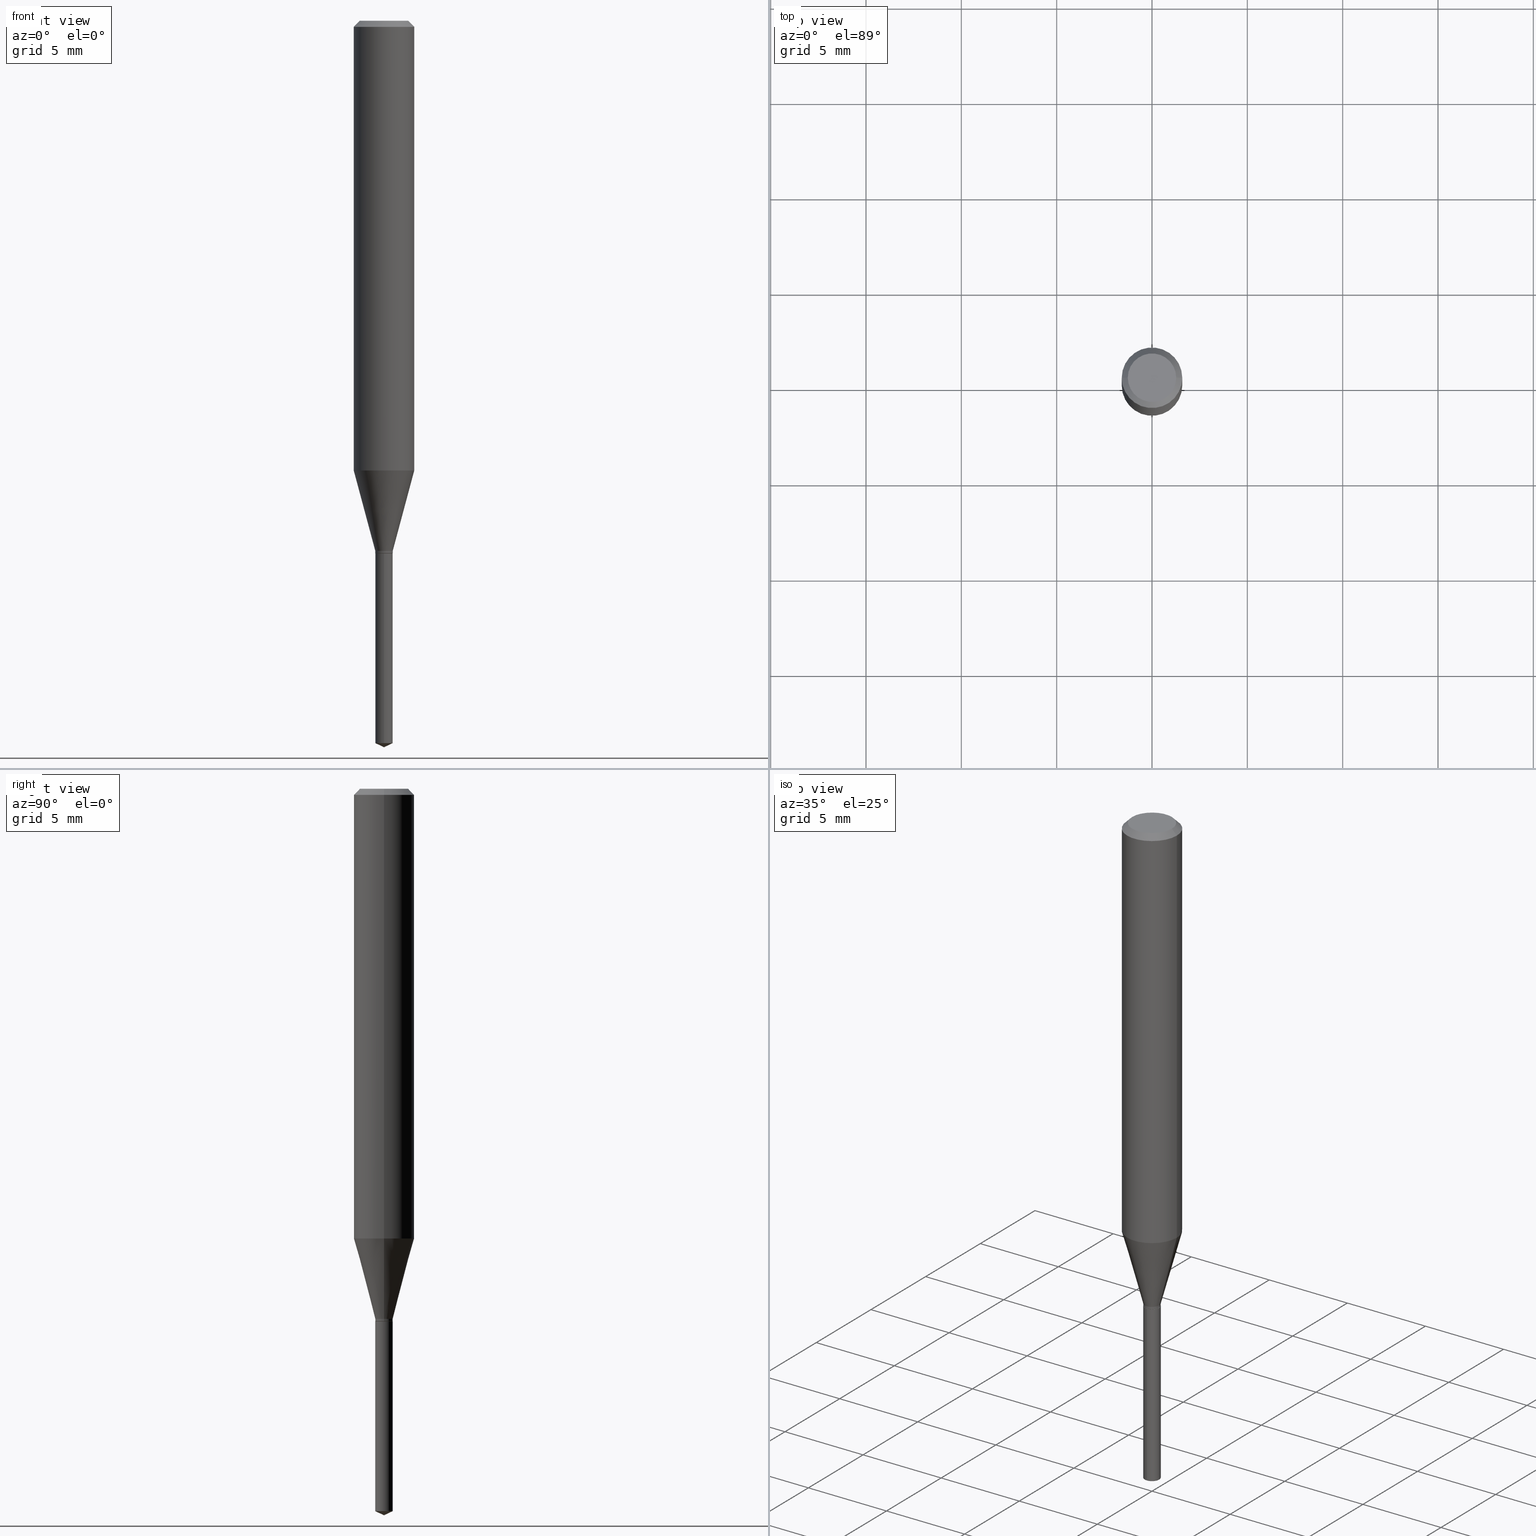
[diagram: canonical four-view strip — front | top / right | iso, engineering-drawing reading convention]
A machine part, canonical four-view strip (front | top / right | iso — engineering-drawing reading convention). The complete STEP part file that produces these views, byte-faithful:
ISO-10303-21;
HEADER;
FILE_DESCRIPTION (( 'STEP AP203' ),
    '1' );
FILE_NAME ('07314.STEP',
    '2024-04-23T20:23:32',
    ( '' ),
    ( '' ),
    'SwSTEP 2.0',
    'SolidWorks 2023',
    '' );
FILE_SCHEMA (( 'CONFIG_CONTROL_DESIGN' ));
ENDSEC;

DATA;
#1 = DATE_AND_TIME ( #227, #62 ) ;
#2 = DIRECTION ( 'NONE',  ( 1.000000000000000000, -6.982962677686278543E-15, 0.000000000000000000 ) ) ;
#3 = VERTEX_POINT ( 'NONE', #455 ) ;
#4 = PERSON_AND_ORGANIZATION ( #157, #124 ) ;
#5 = ADVANCED_FACE ( 'NONE', ( #482 ), #381, .T. ) ;
#6 = DIRECTION ( 'NONE',  ( 2.445468806185136597E-29, -3.491481338843145583E-15, -1.000000000000000000 ) ) ;
#7 = ORIENTED_EDGE ( 'NONE', *, *, #12, .T. ) ;
#8 = VECTOR ( 'NONE', #306, 39.37007874015748143 ) ;
#9 = CIRCLE ( 'NONE', #345, 0.01799999999999999864 ) ;
#10 = ORIENTED_EDGE ( 'NONE', *, *, #257, .T. ) ;
#11 = ORIENTED_EDGE ( 'NONE', *, *, #173, .T. ) ;
#12 = EDGE_CURVE ( 'NONE', #447, #254, #177, .T. ) ;
#13 = CARTESIAN_POINT ( 'NONE',  ( 3.647650008117672005E-29, -5.207954887819162925E-15, -1.491606462153210355 ) ) ;
#14 = CARTESIAN_POINT ( 'NONE',  ( -0.01749999999999999820, -3.716284493969442853E-15, -1.100000000000000089 ) ) ;
#15 = EDGE_CURVE ( 'NONE', #186, #222, #147, .T. ) ;
#16 = APPLICATION_PROTOCOL_DEFINITION ( 'international standard', 'config_control_design', 1994, #206 ) ;
#17 = PERSON_AND_ORGANIZATION_ROLE ( 'design_owner' ) ;
#18 = AXIS2_PLACEMENT_3D ( 'NONE', #317, #365, #122 ) ;
#19 = CARTESIAN_POINT ( 'NONE',  ( 0.01799999999999999864, -3.964577060256391588E-15, -1.099499999999999922 ) ) ;
#20 = CARTESIAN_POINT ( 'NONE',  ( 2.690015686803650369E-29, -3.840629472727460101E-15, -1.100000000000000089 ) ) ;
#21 = FACE_OUTER_BOUND ( 'NONE', #484, .T. ) ;
#22 = PRODUCT_RELATED_PRODUCT_CATEGORY ( 'detail', '', ( #54 ) ) ;
#23 = CARTESIAN_POINT ( 'NONE',  ( 3.893286209682126177E-47, -5.558580879666067980E-33, -1.592040838891559689E-18 ) ) ;
#24 = DIRECTION ( 'NONE',  ( -2.438088387897960049E-29, 3.491481338843145188E-15, 1.000000000000000000 ) ) ;
#25 = AXIS2_PLACEMENT_3D ( 'NONE', #282, #92, #409 ) ;
#26 = CIRCLE ( 'NONE', #142, 0.06250000000000000000 ) ;
#27 = ORIENTED_EDGE ( 'NONE', *, *, #70, .T. ) ;
#28 = ORIENTED_EDGE ( 'NONE', *, *, #353, .F. ) ;
#29 = COORDINATED_UNIVERSAL_TIME_OFFSET ( 5, 0, .BEHIND. ) ;
#30 = CARTESIAN_POINT ( 'NONE',  ( 1.278976924368545333E-16, 0.01799999999999615796, -1.100000000000000089 ) ) ;
#31 = EDGE_LOOP ( 'NONE', ( #377, #431, #10, #28 ) ) ;
#32 = VECTOR ( 'NONE', #211, 39.37007874015748143 ) ;
#33 = ORIENTED_EDGE ( 'NONE', *, *, #483, .T. ) ;
#34 = ORIENTED_EDGE ( 'NONE', *, *, #391, .F. ) ;
#35 = CALENDAR_DATE ( 2024, 23, 4 ) ;
#36 = FACE_OUTER_BOUND ( 'NONE', #268, .T. ) ;
#37 = VERTEX_POINT ( 'NONE', #30 ) ;
#38 = ORIENTED_EDGE ( 'NONE', *, *, #452, .T. ) ;
#39 = AXIS2_PLACEMENT_3D ( 'NONE', #262, #264, #2 ) ;
#40 = AXIS2_PLACEMENT_3D ( 'NONE', #435, #86, #441 ) ;
#41 = DIRECTION ( 'NONE',  ( -2.445468806185136597E-29, 3.491481338843145583E-15, 1.000000000000000000 ) ) ;
#42 = ORIENTED_EDGE ( 'NONE', *, *, #79, .F. ) ;
#43 = CARTESIAN_POINT ( 'NONE',  ( 2.676810155250250579E-29, -3.821775473497707863E-15, -1.094600000000000017 ) ) ;
#44 = CC_DESIGN_DATE_AND_TIME_ASSIGNMENT ( #1, #461, ( #84 ) ) ;
#45 = DIRECTION ( 'NONE',  ( -6.328713451373388311E-15, -0.9063077870366513800, 0.4226182617406960551 ) ) ;
#46 = DATE_AND_TIME ( #331, #259 ) ;
#47 = CC_DESIGN_APPROVAL ( #404, ( #267 ) ) ;
#48 = CARTESIAN_POINT ( 'NONE',  ( 0.01749999999999999820, -3.962831319586970084E-15, -1.100000000000000089 ) ) ;
#49 = EDGE_CURVE ( 'NONE', #447, #308, #193, .T. ) ;
#50 = CARTESIAN_POINT ( 'NONE',  ( 2.690015686803650369E-29, -3.840629472727460101E-15, -1.100000000000000089 ) ) ;
#51 = DIRECTION ( 'NONE',  ( 1.000000000000000000, -6.982962677686278543E-15, 0.000000000000000000 ) ) ;
#52 = CIRCLE ( 'NONE', #312, 0.01799999999999999864 ) ;
#53 = CONICAL_SURFACE ( 'NONE', #74, 84.42940631927551465, 1.134464013796321336 ) ;
#54 = PRODUCT ( '07314', '07314', '', ( #176 ) ) ;
#55 = EDGE_CURVE ( 'NONE', #222, #37, #419, .T. ) ;
#56 =( NAMED_UNIT ( * ) SI_UNIT ( $, .STERADIAN. ) SOLID_ANGLE_UNIT ( ) );
#57 = ORIENTED_EDGE ( 'NONE', *, *, #55, .T. ) ;
#58 = CARTESIAN_POINT ( 'NONE',  ( 3.056836007731440539E-31, -4.364351673553960451E-17, -0.01250000000000008049 ) ) ;
#59 = DIRECTION ( 'NONE',  ( 1.000000000000000000, -6.982962677686266711E-15, 4.876176775795935232E-29 ) ) ;
#60 = ORIENTED_EDGE ( 'NONE', *, *, #15, .T. ) ;
#61 = VECTOR ( 'NONE', #326, 39.37007874015748143 ) ;
#62 = LOCAL_TIME ( 16, 23, 32.00000000000000000, #347 ) ;
#63 = DIRECTION ( 'NONE',  ( -2.445468806185136597E-29, 3.491481338843145583E-15, 1.000000000000000000 ) ) ;
#64 = ORIENTED_EDGE ( 'NONE', *, *, #49, .T. ) ;
#65 = ORIENTED_EDGE ( 'NONE', *, *, #180, .F. ) ;
#66 = DIRECTION ( 'NONE',  ( 1.000000000000000000, -6.982962677686267499E-15, 0.000000000000000000 ) ) ;
#67 = VERTEX_POINT ( 'NONE', #453 ) ;
#68 = PERSON_AND_ORGANIZATION_ROLE ( 'creator' ) ;
#69 = ORIENTED_EDGE ( 'NONE', *, *, #376, .F. ) ;
#70 = EDGE_CURVE ( 'NONE', #411, #383, #140, .T. ) ;
#71 = ORIENTED_EDGE ( 'NONE', *, *, #483, .F. ) ;
#72 = CIRCLE ( 'NONE', #18, 0.01799999999999999864 ) ;
#73 = APPROVAL_STATUS ( 'not_yet_approved' ) ;
#74 = AXIS2_PLACEMENT_3D ( 'NONE', #281, #241, #399 ) ;
#75 = PLANE ( 'NONE',  #266 ) ;
#76 = ORIENTED_EDGE ( 'NONE', *, *, #153, .T. ) ;
#77 = ADVANCED_FACE ( 'NONE', ( #141 ), #108, .F. ) ;
#78 = EDGE_LOOP ( 'NONE', ( #229, #350, #236, #429 ) ) ;
#79 = EDGE_CURVE ( 'NONE', #254, #388, #433, .T. ) ;
#80 = ORIENTED_EDGE ( 'NONE', *, *, #367, .T. ) ;
#81 = DIRECTION ( 'NONE',  ( -2.445468806185136597E-29, 3.491481338843145583E-15, 1.000000000000000000 ) ) ;
#82 = VECTOR ( 'NONE', #378, 39.37007874015748854 ) ;
#83 = LOCAL_TIME ( 16, 23, 32.00000000000000000, #454 ) ;
#84 = PRODUCT_DEFINITION ( 'UNKNOWN', '', #97, #427 ) ;
#85 = CARTESIAN_POINT ( 'NONE',  ( -0.06250000000000005551, 4.440892098500630106E-16, -3.074334431409318916E-30 ) ) ;
#86 = DIRECTION ( 'NONE',  ( -2.445468806185136597E-29, 3.491481338843145583E-15, 1.000000000000000000 ) ) ;
#87 = CYLINDRICAL_SURFACE ( 'NONE', #249, 0.06250000000000005551 ) ;
#88 = LINE ( 'NONE', #240, #61 ) ;
#89 = DIRECTION ( 'NONE',  ( 1.000000000000000000, -6.982962677686265922E-15, 4.875957971899673662E-29 ) ) ;
#90 = DIRECTION ( 'NONE',  ( -2.445468806185136597E-29, 3.491481338843145583E-15, 1.000000000000000000 ) ) ;
#91 = CARTESIAN_POINT ( 'NONE',  ( 0.01799999999999999864, -3.947468801696060853E-15, -1.094600000000000017 ) ) ;
#92 = DIRECTION ( 'NONE',  ( -2.445468806185136597E-29, 3.491481338843145583E-15, 1.000000000000000000 ) ) ;
#93 = APPLICATION_PROTOCOL_DEFINITION ( 'international standard', 'config_control_design', 1994, #181 ) ;
#94 = MANIFOLD_SOLID_BREP ( 'Body-Move/Copy2[1]', #333 ) ;
#95 = EDGE_CURVE ( 'NONE', #150, #67, #179, .T. ) ;
#96 = CIRCLE ( 'NONE', #444, 0.01800000000000000211 ) ;
#97 = PRODUCT_DEFINITION_FORMATION_WITH_SPECIFIED_SOURCE ( 'ANY', '', #54, .NOT_KNOWN. ) ;
#98 = DIRECTION ( 'NONE',  ( 6.982962677686265922E-15, 1.000000000000000000, -3.491580316559632610E-15 ) ) ;
#99 = ORIENTED_EDGE ( 'NONE', *, *, #376, .T. ) ;
#100 = EDGE_LOOP ( 'NONE', ( #303, #395 ) ) ;
#101 = DIRECTION ( 'NONE',  ( 1.000000000000000000, -6.982962677686266711E-15, 0.000000000000000000 ) ) ;
#102 = CARTESIAN_POINT ( 'NONE',  ( 2.270675839681406298E-29, -3.241923307611973113E-15, -0.9285237390631850829 ) ) ;
#103 = AXIS2_PLACEMENT_3D ( 'NONE', #119, #41, #275 ) ;
#104 = AXIS2_PLACEMENT_3D ( 'NONE', #342, #110, #144 ) ;
#105 = AXIS2_PLACEMENT_3D ( 'NONE', #446, #256, #59 ) ;
#106 = PERSON_AND_ORGANIZATION ( #157, #124 ) ;
#107 = ORIENTED_EDGE ( 'NONE', *, *, #406, .T. ) ;
#108 = PLANE ( 'NONE',  #393 ) ;
#109 = SHAPE_DEFINITION_REPRESENTATION ( #474, #372 ) ;
#110 = DIRECTION ( 'NONE',  ( -2.445468806185136597E-29, 3.491481338843145583E-15, 1.000000000000000000 ) ) ;
#111 = ADVANCED_FACE ( 'NONE', ( #112 ), #158, .T. ) ;
#112 = FACE_OUTER_BOUND ( 'NONE', #434, .T. ) ;
#113 = ORIENTED_EDGE ( 'NONE', *, *, #12, .F. ) ;
#114 = FACE_OUTER_BOUND ( 'NONE', #195, .T. ) ;
#115 = CIRCLE ( 'NONE', #40, 0.01799999999999999864 ) ;
#116 = ORIENTED_EDGE ( 'NONE', *, *, #159, .T. ) ;
#117 = EDGE_LOOP ( 'NONE', ( #69, #346, #107, #71 ) ) ;
#118 = DIRECTION ( 'NONE',  ( 1.000000000000000000, -6.982962677686265922E-15, 4.875957971899673662E-29 ) ) ;
#119 = CARTESIAN_POINT ( 'NONE',  ( 0.000000000000000000, 0.000000000000000000, 0.000000000000000000 ) ) ;
#120 = ORIENTED_EDGE ( 'NONE', *, *, #316, .F. ) ;
#121 = DIRECTION ( 'NONE',  ( -6.982962677686267499E-15, -1.000000000000000000, 3.520397390770404961E-15 ) ) ;
#122 = DIRECTION ( 'NONE',  ( 1.000000000000000000, -6.982962677686279332E-15, 0.000000000000000000 ) ) ;
#123 = CIRCLE ( 'NONE', #375, 0.01749999999999999820 ) ;
#124 = ORGANIZATION ( 'UNSPECIFIED', 'UNSPECIFIED', '' ) ;
#125 = CARTESIAN_POINT ( 'NONE',  ( 0.000000000000000000, 0.000000000000000000, 0.000000000000000000 ) ) ;
#126 = CARTESIAN_POINT ( 'NONE',  ( 3.056836007731440539E-31, -4.364351673553960451E-17, -0.01250000000000008049 ) ) ;
#127 = DIRECTION ( 'NONE',  ( -6.982962677686265133E-15, -1.000000000000000000, 0.000000000000000000 ) ) ;
#128 = AXIS2_PLACEMENT_3D ( 'NONE', #13, #271, #432 ) ;
#129 = AXIS2_PLACEMENT_3D ( 'NONE', #253, #366, #401 ) ;
#130 = FACE_OUTER_BOUND ( 'NONE', #490, .T. ) ;
#131 = ADVANCED_FACE ( 'NONE', ( #36 ), #75, .F. ) ;
#132 = DIRECTION ( 'NONE',  ( -2.445468806185136597E-29, 3.491481338843145583E-15, 1.000000000000000000 ) ) ;
#133 = EDGE_CURVE ( 'NONE', #388, #254, #258, .T. ) ;
#134 = DIRECTION ( 'NONE',  ( 2.445399690415121250E-29, -3.491580316559632610E-15, -1.000000000000000000 ) ) ;
#135 = CC_DESIGN_APPROVAL ( #471, ( #84 ) ) ;
#136 = CARTESIAN_POINT ( 'NONE',  ( 2.690015686803650369E-29, -3.840629472727460101E-15, -1.100000000000000089 ) ) ;
#137 = ORIENTED_EDGE ( 'NONE', *, *, #367, .F. ) ;
#138 = ADVANCED_FACE ( 'NONE', ( #235 ), #336, .T. ) ;
#139 = APPROVAL_STATUS ( 'not_yet_approved' ) ;
#140 = LINE ( 'NONE', #297, #32 ) ;
#141 = FACE_OUTER_BOUND ( 'NONE', #100, .T. ) ;
#142 = AXIS2_PLACEMENT_3D ( 'NONE', #126, #90, #328 ) ;
#143 = DATE_AND_TIME ( #149, #356 ) ;
#144 = DIRECTION ( 'NONE',  ( 1.000000000000000000, -6.982962677686279332E-15, 0.000000000000000000 ) ) ;
#145 = COORDINATED_UNIVERSAL_TIME_OFFSET ( 5, 0, .BEHIND. ) ;
#146 = ADVANCED_FACE ( 'NONE', ( #318 ), #464, .T. ) ;
#147 = LINE ( 'NONE', #485, #82 ) ;
#148 = ORIENTED_EDGE ( 'NONE', *, *, #250, .F. ) ;
#149 = CALENDAR_DATE ( 2024, 23, 4 ) ;
#150 = VERTEX_POINT ( 'NONE', #280 ) ;
#151 = AXIS2_PLACEMENT_3D ( 'NONE', #192, #396, #118 ) ;
#152 = VECTOR ( 'NONE', #390, 39.37007874015748143 ) ;
#153 = EDGE_CURVE ( 'NONE', #188, #221, #88, .T. ) ;
#154 = ORIENTED_EDGE ( 'NONE', *, *, #257, .F. ) ;
#155 = ORIENTED_EDGE ( 'NONE', *, *, #330, .F. ) ;
#156 = DIRECTION ( 'NONE',  ( -2.445468806185136597E-29, 3.491481338843145583E-15, 1.000000000000000000 ) ) ;
#157 = PERSON ( 'UNSPECIFIED', 'UNSPECIFIED', 'UNSPECIFIED', ('UNSPECIFIED'), ('UNSPECIFIED'), ('UNSPECIFIED') ) ;
#158 = CONICAL_SURFACE ( 'NONE', #201, 0.06250000000000000000, 0.7853981633974452814 ) ;
#159 = EDGE_CURVE ( 'NONE', #338, #188, #174, .T. ) ;
#160 = DIRECTION ( 'NONE',  ( -2.445468806185136597E-29, 3.491481338843145583E-15, 1.000000000000000000 ) ) ;
#161 = ADVANCED_FACE ( 'NONE', ( #130 ), #301, .T. ) ;
#162 = APPROVAL_ROLE ( '' ) ;
#163 = AXIS2_PLACEMENT_3D ( 'NONE', #58, #169, #205 ) ;
#164 = CC_DESIGN_APPROVAL ( #384, ( #97 ) ) ;
#165 = AXIS2_PLACEMENT_3D ( 'NONE', #228, #134, #98 ) ;
#166 = CARTESIAN_POINT ( 'NONE',  ( 1.278976924368544840E-16, 0.01799999999999479100, -1.491606462153210355 ) ) ;
#167 = CC_DESIGN_DATE_AND_TIME_ASSIGNMENT ( #143, #231, ( #267 ) ) ;
#168 = DIRECTION ( 'NONE',  ( 1.000000000000000000, -6.982962677686267499E-15, 0.000000000000000000 ) ) ;
#169 = DIRECTION ( 'NONE',  ( 2.445468806185136597E-29, -3.491481338843145583E-15, -1.000000000000000000 ) ) ;
#170 = EDGE_LOOP ( 'NONE', ( #313, #38, #415, #154 ) ) ;
#171 = DIRECTION ( 'NONE',  ( 1.000000000000000000, -6.982962677686266711E-15, 4.876176775795935232E-29 ) ) ;
#172 = LENGTH_MEASURE_WITH_UNIT ( LENGTH_MEASURE( 0.02539999999999999897 ), #212 );
#173 = EDGE_CURVE ( 'NONE', #233, #3, #295, .T. ) ;
#174 = CIRCLE ( 'NONE', #25, 0.01749999999999999820 ) ;
#175 = VECTOR ( 'NONE', #45, 39.37007874015748854 ) ;
#176 = MECHANICAL_CONTEXT ( 'NONE', #206, 'mechanical' ) ;
#177 = LINE ( 'NONE', #481, #223 ) ;
#178 = PERSON_AND_ORGANIZATION_ROLE ( 'classification_officer' ) ;
#179 = LINE ( 'NONE', #298, #288 ) ;
#180 = EDGE_CURVE ( 'NONE', #37, #3, #52, .T. ) ;
#181 = APPLICATION_CONTEXT ( 'configuration controlled 3d designs of mechanical parts and assemblies' ) ;
#182 = DIRECTION ( 'NONE',  ( 0.2588190451025212391, 1.565188264969622362E-15, 0.9659258262890679791 ) ) ;
#183 = VECTOR ( 'NONE', #362, 39.37007874015748143 ) ;
#184 = APPROVAL_DATE_TIME ( #217, #384 ) ;
#185 = ORIENTED_EDGE ( 'NONE', *, *, #418, .F. ) ;
#186 = VERTEX_POINT ( 'NONE', #289 ) ;
#187 = PERSON_AND_ORGANIZATION ( #157, #124 ) ;
#188 = VERTEX_POINT ( 'NONE', #48 ) ;
#189 = CARTESIAN_POINT ( 'NONE',  ( -9.260740279983036507E-28, 1.322265303911854087E-13, 37.87007874015748143 ) ) ;
#190 = ADVANCED_FACE ( 'NONE', ( #332 ), #424, .T. ) ;
#191 = ORIENTED_EDGE ( 'NONE', *, *, #250, .T. ) ;
#192 = CARTESIAN_POINT ( 'NONE',  ( 3.893286209682126177E-47, -5.558580879666067980E-33, -1.592040838891559689E-18 ) ) ;
#193 = CIRCLE ( 'NONE', #104, 0.01799999999999999864 ) ;
#194 = UNCERTAINTY_MEASURE_WITH_UNIT (LENGTH_MEASURE( 1.000000000000000082E-05 ), #251, 'distance_accuracy_value', 'NONE');
#195 = EDGE_LOOP ( 'NONE', ( #137, #60, #120 ) ) ;
#196 = FACE_OUTER_BOUND ( 'NONE', #117, .T. ) ;
#197 = LINE ( 'NONE', #352, #302 ) ;
#198 = CARTESIAN_POINT ( 'NONE',  ( 0.000000000000000000, 0.000000000000000000, 0.000000000000000000 ) ) ;
#199 = DIRECTION ( 'NONE',  ( -2.445468806185136597E-29, 3.491481338843145583E-15, 1.000000000000000000 ) ) ;
#200 = CC_DESIGN_PERSON_AND_ORGANIZATION_ASSIGNMENT ( #414, #343, ( #97 ) ) ;
#201 = AXIS2_PLACEMENT_3D ( 'NONE', #412, #6, #265 ) ;
#202 = APPROVAL_PERSON_ORGANIZATION ( #385, #384, #220 ) ;
#203 = CARTESIAN_POINT ( 'NONE',  ( -0.06250000000000009714, -2.797834097761909708E-15, -0.9285237390631850829 ) ) ;
#204 = CARTESIAN_POINT ( 'NONE',  ( 2.690015686803650369E-29, -3.840629472727460101E-15, -1.100000000000000089 ) ) ;
#205 = DIRECTION ( 'NONE',  ( -1.000000000000000000, 6.982962677686266711E-15, 0.000000000000000000 ) ) ;
#206 = APPLICATION_CONTEXT ( 'configuration controlled 3d designs of mechanical parts and assemblies' ) ;
#207 = CIRCLE ( 'NONE', #364, 0.06250000000000000000 ) ;
#208 = CARTESIAN_POINT ( 'NONE',  ( 3.647650008117672005E-29, -5.207954887819162925E-15, -1.491606462153210355 ) ) ;
#209 = DIMENSIONAL_EXPONENTS ( 1.000000000000000000, 0.000000000000000000, 0.000000000000000000, 0.000000000000000000, 0.000000000000000000, 0.000000000000000000, 0.000000000000000000 ) ;
#210 =( NAMED_UNIT ( * ) PLANE_ANGLE_UNIT ( ) SI_UNIT ( $, .RADIAN. ) );
#211 = DIRECTION ( 'NONE',  ( 0.7071067811865453523, -7.319954787623248157E-15, -0.7071067811865496822 ) ) ;
#212 =( LENGTH_UNIT ( ) NAMED_UNIT ( * ) SI_UNIT ( $, .METRE. ) );
#213 = AXIS2_PLACEMENT_3D ( 'NONE', #43, #81, #469 ) ;
#214 = ORIENTED_EDGE ( 'NONE', *, *, #348, .F. ) ;
#215 = CARTESIAN_POINT ( 'NONE',  ( 1.946643104841063088E-47, -2.779290439833033990E-33, -7.960204194457798443E-19 ) ) ;
#216 = CARTESIAN_POINT ( 'NONE',  ( -0.01799999999999999864, -3.702431910341055478E-15, -1.094600000000000017 ) ) ;
#217 = DATE_AND_TIME ( #35, #479 ) ;
#218 = DIRECTION ( 'NONE',  ( -2.445468806185136597E-29, 3.491481338843145583E-15, 1.000000000000000000 ) ) ;
#219 = ORIENTED_EDGE ( 'NONE', *, *, #443, .T. ) ;
#220 = APPROVAL_ROLE ( '' ) ;
#221 = VERTEX_POINT ( 'NONE', #19 ) ;
#222 = VERTEX_POINT ( 'NONE', #166 ) ;
#223 = VECTOR ( 'NONE', #182, 39.37007874015748854 ) ;
#224 = APPROVAL_PERSON_ORGANIZATION ( #106, #404, #457 ) ;
#225 = ORIENTED_EDGE ( 'NONE', *, *, #239, .T. ) ;
#226 = DIRECTION ( 'NONE',  ( -6.982962677686265133E-15, -1.000000000000000000, 0.000000000000000000 ) ) ;
#227 = CALENDAR_DATE ( 2024, 23, 4 ) ;
#228 = CARTESIAN_POINT ( 'NONE',  ( 2.690015686803650369E-29, -3.840629472727460101E-15, -1.100000000000000089 ) ) ;
#229 = ORIENTED_EDGE ( 'NONE', *, *, #232, .T. ) ;
#230 = CARTESIAN_POINT ( 'NONE',  ( 0.06250000000000009714, -3.678358474967365966E-15, -0.9285237390631850829 ) ) ;
#231 = DATE_TIME_ROLE ( 'classification_date' ) ;
#232 = EDGE_CURVE ( 'NONE', #188, #338, #123, .T. ) ;
#233 = VERTEX_POINT ( 'NONE', #389 ) ;
#234 = FACE_OUTER_BOUND ( 'NONE', #357, .T. ) ;
#235 = FACE_OUTER_BOUND ( 'NONE', #486, .T. ) ;
#236 = ORIENTED_EDGE ( 'NONE', *, *, #355, .F. ) ;
#237 = AXIS2_PLACEMENT_3D ( 'NONE', #23, #63, #89 ) ;
#238 = FACE_OUTER_BOUND ( 'NONE', #426, .T. ) ;
#239 = EDGE_CURVE ( 'NONE', #150, #411, #408, .T. ) ;
#240 = CARTESIAN_POINT ( 'NONE',  ( 0.01749999999999999820, -3.962831319586970084E-15, -1.100000000000000089 ) ) ;
#241 = DIRECTION ( 'NONE',  ( -2.445399690415121530E-29, 3.491580316559632610E-15, 1.000000000000000000 ) ) ;
#242 = CYLINDRICAL_SURFACE ( 'NONE', #129, 0.01799999999999999864 ) ;
#243 = VECTOR ( 'NONE', #368, 39.37007874015748143 ) ;
#244 = CYLINDRICAL_SURFACE ( 'NONE', #105, 0.01799999999999999864 ) ;
#245 = DIRECTION ( 'NONE',  ( -6.982962677686265133E-15, -1.000000000000000000, 0.000000000000000000 ) ) ;
#246 = CARTESIAN_POINT ( 'NONE',  ( -1.256933281983258730E-16, -0.01800000000000383932, -1.100000000000000089 ) ) ;
#247 = CLOSED_SHELL ( 'NONE', ( #5, #161, #300, #138, #477, #146, #273, #278, #111, #131, #77, #190 ) ) ;
#248 = MANIFOLD_SOLID_BREP ( 'Body-Move/Copy2[2]', #247 ) ;
#249 = AXIS2_PLACEMENT_3D ( 'NONE', #398, #199, #171 ) ;
#250 = EDGE_CURVE ( 'NONE', #222, #233, #322, .T. ) ;
#251 =( CONVERSION_BASED_UNIT ( 'INCH', #172 ) LENGTH_UNIT ( ) NAMED_UNIT ( #209 ) );
#252 = CC_DESIGN_PERSON_AND_ORGANIZATION_ASSIGNMENT ( #187, #68, ( #97 ) ) ;
#253 = CARTESIAN_POINT ( 'NONE',  ( 2.690015686803650369E-29, -3.840629472727460101E-15, -1.100000000000000089 ) ) ;
#254 = VERTEX_POINT ( 'NONE', #230 ) ;
#255 = CARTESIAN_POINT ( 'NONE',  ( 2.270675839681406298E-29, -3.241923307611973113E-15, -0.9285237390631850829 ) ) ;
#256 = DIRECTION ( 'NONE',  ( -2.445468806185136597E-29, 3.491481338843145583E-15, 1.000000000000000000 ) ) ;
#257 = EDGE_CURVE ( 'NONE', #221, #447, #321, .T. ) ;
#258 = CIRCLE ( 'NONE', #487, 0.06250000000000009714 ) ;
#259 = LOCAL_TIME ( 16, 23, 32.00000000000000000, #296 ) ;
#260 = DATE_AND_TIME ( #311, #83 ) ;
#261 = CC_DESIGN_PERSON_AND_ORGANIZATION_ASSIGNMENT ( #423, #488, ( #84 ) ) ;
#262 = CARTESIAN_POINT ( 'NONE',  ( 2.690015686803650369E-29, -3.840629472727460101E-15, -1.100000000000000089 ) ) ;
#263 = CARTESIAN_POINT ( 'NONE',  ( 2.690015686803650369E-29, -3.840629472727460101E-15, -1.100000000000000089 ) ) ;
#264 = DIRECTION ( 'NONE',  ( -2.445468806185136597E-29, 3.491481338843145583E-15, 1.000000000000000000 ) ) ;
#265 = DIRECTION ( 'NONE',  ( -1.000000000000000000, 6.982962677686266711E-15, 0.000000000000000000 ) ) ;
#266 = AXIS2_PLACEMENT_3D ( 'NONE', #215, #304, #416 ) ;
#267 = SECURITY_CLASSIFICATION ( '', '', #351 ) ;
#268 = EDGE_LOOP ( 'NONE', ( #225, #269 ) ) ;
#269 = ORIENTED_EDGE ( 'NONE', *, *, #330, .T. ) ;
#270 = ORIENTED_EDGE ( 'NONE', *, *, #15, .F. ) ;
#271 = DIRECTION ( 'NONE',  ( -2.445399690415121530E-29, 3.491580316559632610E-15, 1.000000000000000000 ) ) ;
#272 = PLANE ( 'NONE',  #165 ) ;
#273 = ADVANCED_FACE ( 'NONE', ( #238 ), #476, .T. ) ;
#274 = CARTESIAN_POINT ( 'NONE',  ( 0.06250000000000005551, -4.364351673553920638E-16, 3.047610484872462323E-30 ) ) ;
#275 = DIRECTION ( 'NONE',  ( 1.000000000000000000, -6.982962677686266711E-15, 4.876176775795935232E-29 ) ) ;
#276 = ORIENTED_EDGE ( 'NONE', *, *, #95, .T. ) ;
#277 = VECTOR ( 'NONE', #472, 39.37007874015748143 ) ;
#278 = ADVANCED_FACE ( 'NONE', ( #196 ), #360, .T. ) ;
#279 = CARTESIAN_POINT ( 'NONE',  ( -0.01799999999999999864, -3.702431910341055478E-15, -1.099499999999999922 ) ) ;
#280 = CARTESIAN_POINT ( 'NONE',  ( -0.04999999999999999584, 3.709698922520826725E-16, -1.592040838894077649E-18 ) ) ;
#281 = CARTESIAN_POINT ( 'NONE',  ( -9.260740279983036507E-28, 1.322265303911854087E-13, 37.87007874015748143 ) ) ;
#282 = CARTESIAN_POINT ( 'NONE',  ( 2.690015686803650369E-29, -3.840629472727460101E-15, -1.100000000000000089 ) ) ;
#283 = LINE ( 'NONE', #274, #293 ) ;
#284 = DIRECTION ( 'NONE',  ( -2.445399690415121530E-29, 3.491580316559632610E-15, 1.000000000000000000 ) ) ;
#285 = DIRECTION ( 'NONE',  ( -2.445399690415121530E-29, 3.491580316559632610E-15, 1.000000000000000000 ) ) ;
#286 = DIRECTION ( 'NONE',  ( -2.445468806185136877E-29, 3.491481338843145188E-15, 1.000000000000000000 ) ) ;
#287 = CARTESIAN_POINT ( 'NONE',  ( 2.676810155250250579E-29, -3.821775473497707863E-15, -1.094600000000000017 ) ) ;
#288 = VECTOR ( 'NONE', #309, 39.37007874015748143 ) ;
#289 = CARTESIAN_POINT ( 'NONE',  ( 3.668099535622682715E-29, -5.237370474839449507E-15, -1.500000000000000222 ) ) ;
#290 = DIRECTION ( 'NONE',  ( 1.000000000000000000, -6.982962677686278543E-15, 0.000000000000000000 ) ) ;
#291 = DIRECTION ( 'NONE',  ( -2.445468806185136597E-29, 3.491481338843145583E-15, 1.000000000000000000 ) ) ;
#292 = CIRCLE ( 'NONE', #237, 0.04999999999999999584 ) ;
#293 = VECTOR ( 'NONE', #286, 39.37007874015748143 ) ;
#294 = DIRECTION ( 'NONE',  ( 1.000000000000000000, 0.000000000000000000, 0.000000000000000000 ) ) ;
#295 = LINE ( 'NONE', #246, #243 ) ;
#296 = COORDINATED_UNIVERSAL_TIME_OFFSET ( 5, 0, .BEHIND. ) ;
#297 = CARTESIAN_POINT ( 'NONE',  ( 0.06250000000000000000, -4.724246415962602840E-16, -0.01250000000000008049 ) ) ;
#298 = CARTESIAN_POINT ( 'NONE',  ( -0.06250000000000000000, 3.927916506198521080E-16, -0.01250000000000008049 ) ) ;
#299 = VERTEX_POINT ( 'NONE', #279 ) ;
#300 = ADVANCED_FACE ( 'NONE', ( #437 ), #87, .T. ) ;
#301 = CONICAL_SURFACE ( 'NONE', #163, 0.06250000000000000000, 0.7853981633974452814 ) ;
#302 = VECTOR ( 'NONE', #387, 39.37007874015748854 ) ;
#303 = ORIENTED_EDGE ( 'NONE', *, *, #232, .F. ) ;
#304 = DIRECTION ( 'NONE',  ( 2.438088387897960049E-29, -3.491481338843145188E-15, -1.000000000000000000 ) ) ;
#305 = ORIENTED_EDGE ( 'NONE', *, *, #239, .F. ) ;
#306 = DIRECTION ( 'NONE',  ( -2.445399690415121810E-29, 3.491580316559632610E-15, 1.000000000000000000 ) ) ;
#307 = APPROVAL_STATUS ( 'not_yet_approved' ) ;
#308 = VERTEX_POINT ( 'NONE', #216 ) ;
#309 = DIRECTION ( 'NONE',  ( -0.7071067811865453523, 2.468850131082234184E-15, -0.7071067811865496822 ) ) ;
#310 = ORIENTED_EDGE ( 'NONE', *, *, #391, .T. ) ;
#311 = CALENDAR_DATE ( 2024, 23, 4 ) ;
#312 = AXIS2_PLACEMENT_3D ( 'NONE', #20, #285, #245 ) ;
#313 = ORIENTED_EDGE ( 'NONE', *, *, #355, .T. ) ;
#314 = DIRECTION ( 'NONE',  ( -2.445468806185136597E-29, 3.491481338843145583E-15, 1.000000000000000000 ) ) ;
#315 = ORIENTED_EDGE ( 'NONE', *, *, #173, .F. ) ;
#316 = EDGE_CURVE ( 'NONE', #233, #222, #96, .T. ) ;
#317 = CARTESIAN_POINT ( 'NONE',  ( 2.688792952400557567E-29, -3.838883732058038598E-15, -1.099499999999999922 ) ) ;
#318 = FACE_OUTER_BOUND ( 'NONE', #31, .T. ) ;
#319 = ORIENTED_EDGE ( 'NONE', *, *, #406, .F. ) ;
#320 = DIRECTION ( 'NONE',  ( 1.000000000000000000, -6.982962677686266711E-15, 4.876176775795935232E-29 ) ) ;
#321 = LINE ( 'NONE', #386, #183 ) ;
#322 = CIRCLE ( 'NONE', #128, 0.01800000000000000211 ) ;
#323 = DIRECTION ( 'NONE',  ( 1.000000000000000000, -6.982962677686279332E-15, 0.000000000000000000 ) ) ;
#324 = LINE ( 'NONE', #85, #277 ) ;
#325 = FACE_OUTER_BOUND ( 'NONE', #462, .T. ) ;
#326 = DIRECTION ( 'NONE',  ( 0.7071067811865218156, -2.468850131081987665E-15, 0.7071067811865732189 ) ) ;
#327 = LINE ( 'NONE', #400, #175 ) ;
#328 = DIRECTION ( 'NONE',  ( 1.000000000000000000, -6.982962677686266711E-15, 0.000000000000000000 ) ) ;
#329 = PERSON_AND_ORGANIZATION ( #157, #124 ) ;
#330 = EDGE_CURVE ( 'NONE', #411, #150, #292, .T. ) ;
#331 = CALENDAR_DATE ( 2024, 23, 4 ) ;
#332 = FACE_OUTER_BOUND ( 'NONE', #354, .T. ) ;
#333 = CLOSED_SHELL ( 'NONE', ( #459, #436, #358, #450, #442 ) ) ;
#334 = ORIENTED_EDGE ( 'NONE', *, *, #133, .F. ) ;
#335 = LINE ( 'NONE', #439, #370 ) ;
#336 = CONICAL_SURFACE ( 'NONE', #402, 0.01799999999999999864, 0.2617993877991499629 ) ;
#337 = CC_DESIGN_SECURITY_CLASSIFICATION ( #267, ( #97 ) ) ;
#338 = VERTEX_POINT ( 'NONE', #467 ) ;
#339 = PERSON_AND_ORGANIZATION ( #157, #124 ) ;
#340 = CARTESIAN_POINT ( 'NONE',  ( 1.278976924368449190E-16, 0.01799999999999615796, -1.100000000000000089 ) ) ;
#341 = APPROVAL_DATE_TIME ( #260, #404 ) ;
#342 = CARTESIAN_POINT ( 'NONE',  ( 2.676810155250250579E-29, -3.821775473497707863E-15, -1.094600000000000017 ) ) ;
#343 = PERSON_AND_ORGANIZATION_ROLE ( 'design_supplier' ) ;
#344 = AXIS2_PLACEMENT_3D ( 'NONE', #50, #407, #51 ) ;
#345 = AXIS2_PLACEMENT_3D ( 'NONE', #136, #448, #410 ) ;
#346 = ORIENTED_EDGE ( 'NONE', *, *, #133, .T. ) ;
#347 = COORDINATED_UNIVERSAL_TIME_OFFSET ( 5, 0, .BEHIND. ) ;
#348 = EDGE_CURVE ( 'NONE', #299, #221, #72, .T. ) ;
#349 = ORIENTED_EDGE ( 'NONE', *, *, #418, .T. ) ;
#350 = ORIENTED_EDGE ( 'NONE', *, *, #430, .T. ) ;
#351 = SECURITY_CLASSIFICATION_LEVEL ( 'unclassified' ) ;
#352 = CARTESIAN_POINT ( 'NONE',  ( -0.01799999999999999864, -3.693877781060889716E-15, -1.094600000000000017 ) ) ;
#353 = EDGE_CURVE ( 'NONE', #308, #447, #363, .T. ) ;
#354 = EDGE_LOOP ( 'NONE', ( #417, #116, #76, #214 ) ) ;
#355 = EDGE_CURVE ( 'NONE', #221, #299, #115, .T. ) ;
#356 = LOCAL_TIME ( 16, 23, 32.00000000000000000, #145 ) ;
#357 = EDGE_LOOP ( 'NONE', ( #219, #374 ) ) ;
#358 = ADVANCED_FACE ( 'NONE', ( #470 ), #53, .T. ) ;
#359 = ORIENTED_EDGE ( 'NONE', *, *, #70, .F. ) ;
#360 = CYLINDRICAL_SURFACE ( 'NONE', #440, 0.06250000000000005551 ) ;
#361 = APPROVAL_DATE_TIME ( #46, #471 ) ;
#362 = DIRECTION ( 'NONE',  ( -2.445468806185136877E-29, 3.491481338843145188E-15, 1.000000000000000000 ) ) ;
#363 = CIRCLE ( 'NONE', #468, 0.01799999999999999864 ) ;
#364 = AXIS2_PLACEMENT_3D ( 'NONE', #438, #291, #101 ) ;
#365 = DIRECTION ( 'NONE',  ( -2.445468806185136597E-29, 3.491481338843145583E-15, 1.000000000000000000 ) ) ;
#366 = DIRECTION ( 'NONE',  ( -2.445399690415121530E-29, 3.491580316559632610E-15, 1.000000000000000000 ) ) ;
#367 = EDGE_CURVE ( 'NONE', #186, #233, #327, .T. ) ;
#368 = DIRECTION ( 'NONE',  ( -2.445399690415121810E-29, 3.491580316559632610E-15, 1.000000000000000000 ) ) ;
#369 = AXIS2_PLACEMENT_3D ( 'NONE', #102, #218, #168 ) ;
#370 = VECTOR ( 'NONE', #475, 39.37007874015748143 ) ;
#371 = DIRECTION ( 'NONE',  ( -2.445399690415121530E-29, 3.491580316559632610E-15, 1.000000000000000000 ) ) ;
#372 = ADVANCED_BREP_SHAPE_REPRESENTATION ( '07314', ( #94, #248, #425 ), #445 ) ;
#373 = DIRECTION ( 'NONE',  ( 0.000000000000000000, 0.000000000000000000, 1.000000000000000000 ) ) ;
#374 = ORIENTED_EDGE ( 'NONE', *, *, #180, .T. ) ;
#375 = AXIS2_PLACEMENT_3D ( 'NONE', #478, #132, #290 ) ;
#376 = EDGE_CURVE ( 'NONE', #388, #67, #324, .T. ) ;
#377 = ORIENTED_EDGE ( 'NONE', *, *, #452, .F. ) ;
#378 = DIRECTION ( 'NONE',  ( 6.439704144417045341E-15, 0.9063077870366544886, 0.4226182617406898934 ) ) ;
#379 = DIRECTION ( 'NONE',  ( -2.445468806185136597E-29, 3.491481338843145583E-15, 1.000000000000000000 ) ) ;
#380 = EDGE_LOOP ( 'NONE', ( #270, #80, #148 ) ) ;
#381 = CONICAL_SURFACE ( 'NONE', #39, 0.01749999999999999820, 0.7853981633974119747 ) ;
#382 = ORIENTED_EDGE ( 'NONE', *, *, #443, .F. ) ;
#383 = VERTEX_POINT ( 'NONE', #463 ) ;
#384 = APPROVAL ( #73, 'UNSPECIFIED' ) ;
#385 = PERSON_AND_ORGANIZATION ( #157, #124 ) ;
#386 = CARTESIAN_POINT ( 'NONE',  ( 0.01799999999999999864, -1.256933281983527929E-16, 8.777118196432682816E-31 ) ) ;
#387 = DIRECTION ( 'NONE',  ( -0.2588190451025212391, 5.211531920934549464E-15, 0.9659258262890679791 ) ) ;
#388 = VERTEX_POINT ( 'NONE', #203 ) ;
#389 = CARTESIAN_POINT ( 'NONE',  ( -1.256933281983163081E-16, -0.01800000000000520975, -1.491606462153210355 ) ) ;
#390 = DIRECTION ( 'NONE',  ( -0.7071067811865218156, 7.493145998870261075E-15, 0.7071067811865732189 ) ) ;
#391 = EDGE_CURVE ( 'NONE', #383, #67, #26, .T. ) ;
#392 = DIRECTION ( 'NONE',  ( 1.000000000000000000, -6.982962677686279332E-15, 0.000000000000000000 ) ) ;
#393 = AXIS2_PLACEMENT_3D ( 'NONE', #263, #24, #449 ) ;
#394 = AXIS2_PLACEMENT_3D ( 'NONE', #189, #466, #121 ) ;
#395 = ORIENTED_EDGE ( 'NONE', *, *, #159, .F. ) ;
#396 = DIRECTION ( 'NONE',  ( -2.445468806185136597E-29, 3.491481338843145583E-15, 1.000000000000000000 ) ) ;
#397 = CARTESIAN_POINT ( 'NONE',  ( 0.04999999999999999584, -4.077247707424184212E-16, -1.592040838888913461E-18 ) ) ;
#398 = CARTESIAN_POINT ( 'NONE',  ( 0.000000000000000000, 0.000000000000000000, 0.000000000000000000 ) ) ;
#399 = DIRECTION ( 'NONE',  ( -6.982962677686267499E-15, -1.000000000000000000, 3.520397390770404961E-15 ) ) ;
#400 = CARTESIAN_POINT ( 'NONE',  ( 3.668099535622682155E-29, -5.237370474839448718E-15, -1.500000000000000222 ) ) ;
#401 = DIRECTION ( 'NONE',  ( -6.982962677686265133E-15, -1.000000000000000000, 0.000000000000000000 ) ) ;
#402 = AXIS2_PLACEMENT_3D ( 'NONE', #428, #314, #392 ) ;
#403 = AXIS2_PLACEMENT_3D ( 'NONE', #204, #284, #127 ) ;
#404 = APPROVAL ( #307, 'UNSPECIFIED' ) ;
#405 = CYLINDRICAL_SURFACE ( 'NONE', #403, 0.01799999999999999864 ) ;
#406 = EDGE_CURVE ( 'NONE', #254, #383, #283, .T. ) ;
#407 = DIRECTION ( 'NONE',  ( -2.445468806185136597E-29, 3.491481338843145583E-15, 1.000000000000000000 ) ) ;
#408 = CIRCLE ( 'NONE', #151, 0.04999999999999999584 ) ;
#409 = DIRECTION ( 'NONE',  ( 1.000000000000000000, -6.982962677686278543E-15, 0.000000000000000000 ) ) ;
#410 = DIRECTION ( 'NONE',  ( -6.982962677686265133E-15, -1.000000000000000000, 0.000000000000000000 ) ) ;
#411 = VERTEX_POINT ( 'NONE', #397 ) ;
#412 = CARTESIAN_POINT ( 'NONE',  ( 3.056836007731440539E-31, -4.364351673553960451E-17, -0.01250000000000008049 ) ) ;
#413 = ORIENTED_EDGE ( 'NONE', *, *, #353, .T. ) ;
#414 = PERSON_AND_ORGANIZATION ( #157, #124 ) ;
#415 = ORIENTED_EDGE ( 'NONE', *, *, #49, .F. ) ;
#416 = DIRECTION ( 'NONE',  ( -1.000000000000000000, 6.982962677686265922E-15, -4.876176775795935793E-29 ) ) ;
#417 = ORIENTED_EDGE ( 'NONE', *, *, #430, .F. ) ;
#418 = EDGE_CURVE ( 'NONE', #308, #388, #197, .T. ) ;
#419 = LINE ( 'NONE', #340, #8 ) ;
#420 = ORIENTED_EDGE ( 'NONE', *, *, #79, .T. ) ;
#421 = ORIENTED_EDGE ( 'NONE', *, *, #316, .T. ) ;
#422 = CC_DESIGN_PERSON_AND_ORGANIZATION_ASSIGNMENT ( #329, #17, ( #54 ) ) ;
#423 = PERSON_AND_ORGANIZATION ( #157, #124 ) ;
#424 = CONICAL_SURFACE ( 'NONE', #344, 0.01749999999999999820, 0.7853981633974119747 ) ;
#425 = AXIS2_PLACEMENT_3D ( 'NONE', #198, #373, #294 ) ;
#426 = EDGE_LOOP ( 'NONE', ( #185, #413, #7, #334 ) ) ;
#427 = DESIGN_CONTEXT ( 'detailed design', #181, 'design' ) ;
#428 = CARTESIAN_POINT ( 'NONE',  ( 2.676810155250250579E-29, -3.821775473497707863E-15, -1.094600000000000017 ) ) ;
#429 = ORIENTED_EDGE ( 'NONE', *, *, #153, .F. ) ;
#430 = EDGE_CURVE ( 'NONE', #338, #299, #458, .T. ) ;
#431 = ORIENTED_EDGE ( 'NONE', *, *, #348, .T. ) ;
#432 = DIRECTION ( 'NONE',  ( -6.982962677686265133E-15, -1.000000000000000000, 0.000000000000000000 ) ) ;
#433 = CIRCLE ( 'NONE', #369, 0.06250000000000009714 ) ;
#434 = EDGE_LOOP ( 'NONE', ( #359, #305, #276, #33 ) ) ;
#435 = CARTESIAN_POINT ( 'NONE',  ( 2.688792952400557567E-29, -3.838883732058038598E-15, -1.099499999999999922 ) ) ;
#436 = ADVANCED_FACE ( 'NONE', ( #114 ), #489, .T. ) ;
#437 = FACE_OUTER_BOUND ( 'NONE', #465, .T. ) ;
#438 = CARTESIAN_POINT ( 'NONE',  ( 3.056836007731440539E-31, -4.364351673553960451E-17, -0.01250000000000008049 ) ) ;
#439 = CARTESIAN_POINT ( 'NONE',  ( -0.01799999999999999864, 1.278976924368180238E-16, -8.854083162458829188E-31 ) ) ;
#440 = AXIS2_PLACEMENT_3D ( 'NONE', #125, #156, #320 ) ;
#441 = DIRECTION ( 'NONE',  ( 1.000000000000000000, -6.982962677686279332E-15, 0.000000000000000000 ) ) ;
#442 = ADVANCED_FACE ( 'NONE', ( #234 ), #272, .F. ) ;
#443 = EDGE_CURVE ( 'NONE', #3, #37, #9, .T. ) ;
#444 = AXIS2_PLACEMENT_3D ( 'NONE', #208, #371, #226 ) ;
#445 =( GEOMETRIC_REPRESENTATION_CONTEXT ( 3 ) GLOBAL_UNCERTAINTY_ASSIGNED_CONTEXT ( ( #194 ) ) GLOBAL_UNIT_ASSIGNED_CONTEXT ( ( #251, #210, #56 ) ) REPRESENTATION_CONTEXT ( 'NONE', 'WORKASPACE' ) );
#446 = CARTESIAN_POINT ( 'NONE',  ( 0.000000000000000000, 0.000000000000000000, 0.000000000000000000 ) ) ;
#447 = VERTEX_POINT ( 'NONE', #91 ) ;
#448 = DIRECTION ( 'NONE',  ( -2.445399690415121530E-29, 3.491580316559632610E-15, 1.000000000000000000 ) ) ;
#449 = DIRECTION ( 'NONE',  ( 1.000000000000000000, -6.982962677686265922E-15, 4.876176775795935793E-29 ) ) ;
#450 = ADVANCED_FACE ( 'NONE', ( #21 ), #405, .T. ) ;
#451 = APPROVAL_PERSON_ORGANIZATION ( #339, #471, #162 ) ;
#452 = EDGE_CURVE ( 'NONE', #299, #308, #335, .T. ) ;
#453 = CARTESIAN_POINT ( 'NONE',  ( -0.06250000000000000000, -1.198694202323692932E-15, -0.01250000000000008049 ) ) ;
#454 = COORDINATED_UNIVERSAL_TIME_OFFSET ( 5, 0, .BEHIND. ) ;
#455 = CARTESIAN_POINT ( 'NONE',  ( -1.256933281983258730E-16, -0.01800000000000383932, -1.100000000000000089 ) ) ;
#456 = ORIENTED_EDGE ( 'NONE', *, *, #95, .F. ) ;
#457 = APPROVAL_ROLE ( '' ) ;
#458 = LINE ( 'NONE', #14, #152 ) ;
#459 = ADVANCED_FACE ( 'NONE', ( #325 ), #242, .T. ) ;
#460 = ORIENTED_EDGE ( 'NONE', *, *, #55, .F. ) ;
#461 = DATE_TIME_ROLE ( 'creation_date' ) ;
#462 = EDGE_LOOP ( 'NONE', ( #421, #57, #382, #315 ) ) ;
#463 = CARTESIAN_POINT ( 'NONE',  ( 0.06250000000000000000, -4.800786840909312308E-16, -0.01250000000000008049 ) ) ;
#464 = CYLINDRICAL_SURFACE ( 'NONE', #103, 0.01799999999999999864 ) ;
#465 = EDGE_LOOP ( 'NONE', ( #420, #99, #34, #319 ) ) ;
#466 = DIRECTION ( 'NONE',  ( -2.445399690415121530E-29, 3.491580316559632610E-15, 1.000000000000000000 ) ) ;
#467 = CARTESIAN_POINT ( 'NONE',  ( -0.01749999999999999820, -3.713635266795331652E-15, -1.100000000000000089 ) ) ;
#468 = AXIS2_PLACEMENT_3D ( 'NONE', #287, #160, #323 ) ;
#469 = DIRECTION ( 'NONE',  ( 1.000000000000000000, -6.982962677686279332E-15, 0.000000000000000000 ) ) ;
#470 = FACE_OUTER_BOUND ( 'NONE', #380, .T. ) ;
#471 = APPROVAL ( #139, 'UNSPECIFIED' ) ;
#472 = DIRECTION ( 'NONE',  ( -2.445468806185136877E-29, 3.491481338843145188E-15, 1.000000000000000000 ) ) ;
#473 = FACE_OUTER_BOUND ( 'NONE', #170, .T. ) ;
#474 = PRODUCT_DEFINITION_SHAPE ( 'NONE', 'NONE',  #84 ) ;
#475 = DIRECTION ( 'NONE',  ( -2.445468806185136877E-29, 3.491481338843145188E-15, 1.000000000000000000 ) ) ;
#476 = CONICAL_SURFACE ( 'NONE', #213, 0.01799999999999999864, 0.2617993877991499629 ) ;
#477 = ADVANCED_FACE ( 'NONE', ( #473 ), #244, .T. ) ;
#478 = CARTESIAN_POINT ( 'NONE',  ( 2.690015686803650369E-29, -3.840629472727460101E-15, -1.100000000000000089 ) ) ;
#479 = LOCAL_TIME ( 16, 23, 32.00000000000000000, #29 ) ;
#480 = CC_DESIGN_PERSON_AND_ORGANIZATION_ASSIGNMENT ( #4, #178, ( #267 ) ) ;
#481 = CARTESIAN_POINT ( 'NONE',  ( 0.01799999999999999864, -3.947468801696060853E-15, -1.094600000000000017 ) ) ;
#482 = FACE_OUTER_BOUND ( 'NONE', #78, .T. ) ;
#483 = EDGE_CURVE ( 'NONE', #67, #383, #207, .T. ) ;
#484 = EDGE_LOOP ( 'NONE', ( #460, #191, #11, #65 ) ) ;
#485 = CARTESIAN_POINT ( 'NONE',  ( 3.668252923656895710E-29, -5.237152723863177100E-15, -1.500000000000000222 ) ) ;
#486 = EDGE_LOOP ( 'NONE', ( #64, #349, #42, #113 ) ) ;
#487 = AXIS2_PLACEMENT_3D ( 'NONE', #255, #379, #66 ) ;
#488 = PERSON_AND_ORGANIZATION_ROLE ( 'creator' ) ;
#489 = CONICAL_SURFACE ( 'NONE', #394, 84.42940631927551465, 1.134464013796321336 ) ;
#490 = EDGE_LOOP ( 'NONE', ( #155, #27, #310, #456 ) ) ;
ENDSEC;
END-ISO-10303-21;
